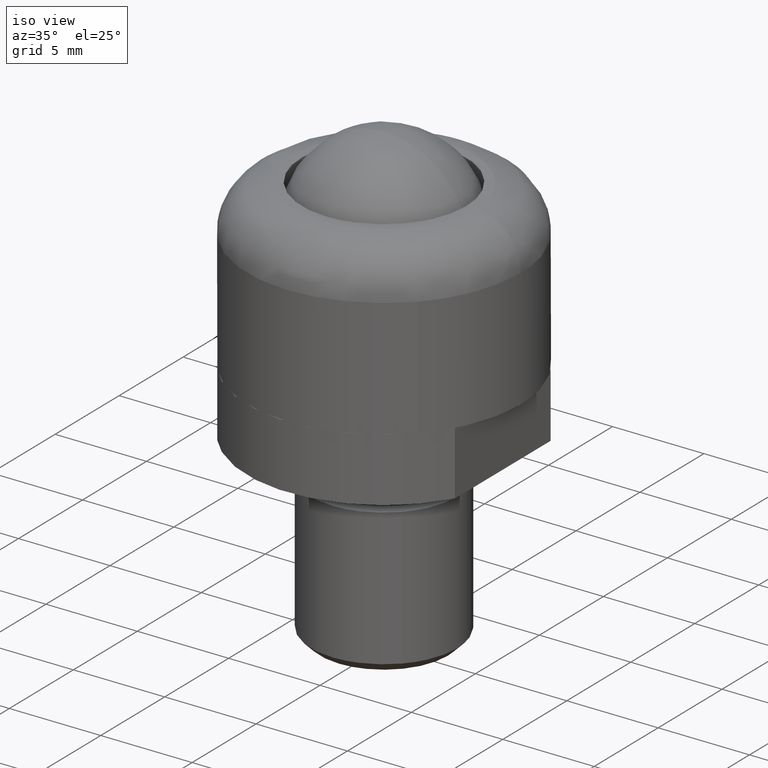
[diagram: clean part render]
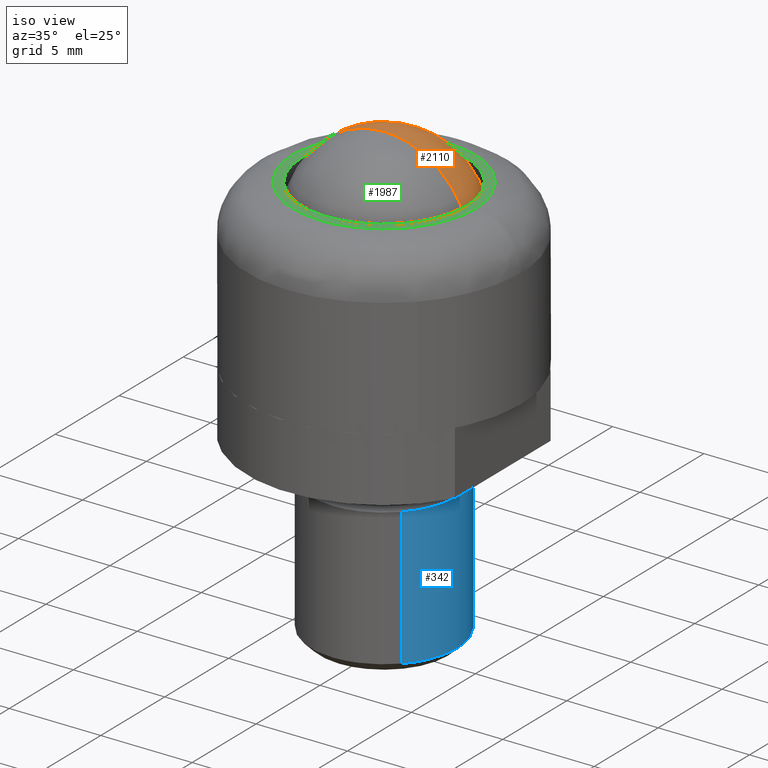
[diagram: same view with three faces highlighted in distinct colors, each labeled with its STEP entity id]
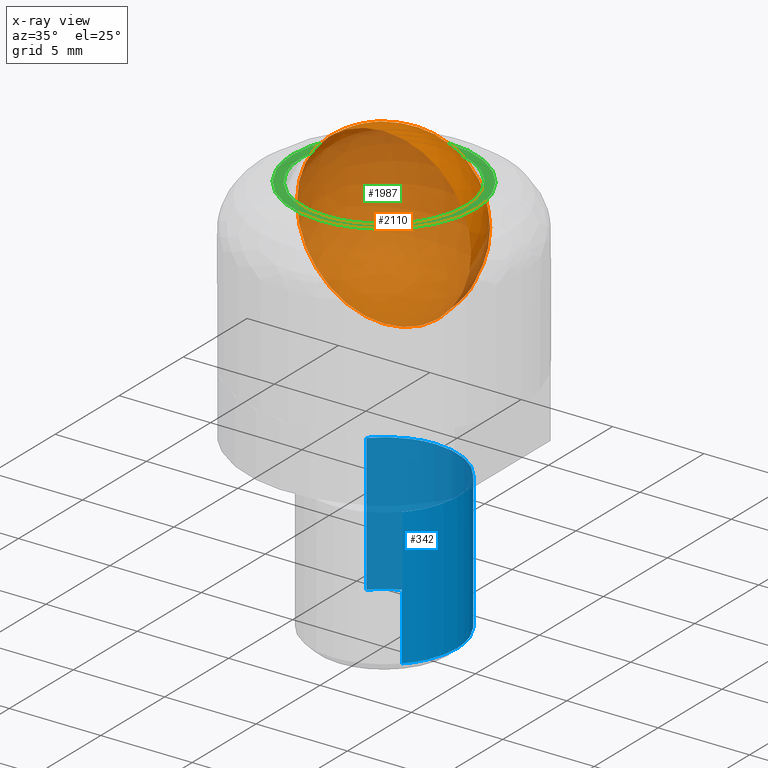
[diagram: x-ray of the same camera — body ghosted, the three highlighted faces saturated]
A machine part, iso view with three faces highlighted in distinct colors.
The next image is the same camera in x-ray (body ghosted, the three faces saturated) — at least one of them is partly hidden behind the body in this view.
Their STEP definitions:

[orange] entity #2110 — the highlighted face is a freeform B-spline surface patch.
#1990=CARTESIAN_POINT('',(-3.121845087131466,-1.785937500000000,9.859345087131466));
#1991=CARTESIAN_POINT('',(-2.827331399666234,-1.168160377358491,10.507275199554982));
#1992=CARTESIAN_POINT('',(-1.189274318907225,-0.226785714285715,11.494597275628903));
#1993=CARTESIAN_POINT('',(1.189274318907225,-0.226785714285715,11.494597275628903));
#1994=CARTESIAN_POINT('',(2.827331399666234,-1.168160377358491,10.507275199554982));
#1995=CARTESIAN_POINT('',(3.121845087131466,-1.785937500000000,9.859345087131466));
#1996=CARTESIAN_POINT('',(-3.769775199554978,-1.168160377358491,9.564831399666234));
#1997=CARTESIAN_POINT('',(-3.567822956721675,-0.226785714285715,10.305322956721676));
#1998=CARTESIAN_POINT('',(-1.611274883680757,1.382661290322580,11.571324651042270));
#1999=CARTESIAN_POINT('',(1.611274883680757,1.382661290322580,11.571324651042270));
#2000=CARTESIAN_POINT('',(3.567822956721675,-0.226785714285715,10.305322956721676));
#2001=CARTESIAN_POINT('',(3.769775199554978,-1.168160377358491,9.564831399666234));
#2002=CARTESIAN_POINT('',(-4.757097275628900,-0.226785714285715,7.926774318907228));
#2003=CARTESIAN_POINT('',(-4.833824651042270,1.382661290322580,8.348774883680756));
#2004=CARTESIAN_POINT('',(-2.497476069705173,4.762499999999998,9.234976069705173));
#2005=CARTESIAN_POINT('',(2.497476069705173,4.762499999999998,9.234976069705173));
#2006=CARTESIAN_POINT('',(4.833824651042270,1.382661290322580,8.348774883680756));
#2007=CARTESIAN_POINT('',(4.757097275628900,-0.226785714285715,7.926774318907228));
#2008=CARTESIAN_POINT('',(-4.757097275628900,-0.226785714285715,5.548225681092776));
#2009=CARTESIAN_POINT('',(-4.833824651042270,1.382661290322580,5.126225116319244));
#2010=CARTESIAN_POINT('',(-2.497476069705173,4.762499999999998,4.240023930294828));
#2011=CARTESIAN_POINT('',(2.497476069705173,4.762499999999998,4.240023930294828));
#2012=CARTESIAN_POINT('',(4.833824651042270,1.382661290322580,5.126225116319244));
#2013=CARTESIAN_POINT('',(4.757097275628900,-0.226785714285715,5.548225681092776));
#2014=CARTESIAN_POINT('',(-3.769775199554978,-1.168160377358491,3.910168600333770));
#2015=CARTESIAN_POINT('',(-3.567822956721675,-0.226785714285715,3.169677043278325));
#2016=CARTESIAN_POINT('',(-1.611274883680757,1.382661290322580,1.903675348957731));
#2017=CARTESIAN_POINT('',(1.611274883680757,1.382661290322580,1.903675348957731));
#2018=CARTESIAN_POINT('',(3.567822956721675,-0.226785714285715,3.169677043278325));
#2019=CARTESIAN_POINT('',(3.769775199554978,-1.168160377358491,3.910168600333770));
#2020=CARTESIAN_POINT('',(-3.121845087131466,-1.785937500000000,3.615654912868534));
#2021=CARTESIAN_POINT('',(-2.827331399666234,-1.168160377358491,2.967724800445025));
#2022=CARTESIAN_POINT('',(-1.189274318907225,-0.226785714285715,1.980402724371100));
#2023=CARTESIAN_POINT('',(1.189274318907225,-0.226785714285715,1.980402724371100));
#2024=CARTESIAN_POINT('',(2.827331399666234,-1.168160377358491,2.967724800445025));
#2025=CARTESIAN_POINT('',(3.121845087131466,-1.785937500000000,3.615654912868534));
#2033=(BOUNDED_SURFACE()B_SPLINE_SURFACE(2,2,((#1990,#1996,#2002,#2008,#2014,#2020),(#1991,#1997,#2003,#2009,#2015,#2021),(#1992,#1998,#2004,#2010,#2016,#2022),(#1993,#1999,#2005,#2011,#2017,#2023),(#1994,#2000,#2006,#2012,#2018,#2024),(#1995,#2001,#2007,#2013,#2019,#2025)),.UNSPECIFIED.,.F.,.F.,.U.)B_SPLINE_SURFACE_WITH_KNOTS((3,1,1,1,3),(3,1,1,1,3),(0.0,4.391166715965140,8.782333431930280,13.173500147895419,17.564666863860559),(0.0,4.391166715965142,8.782333431930285,13.173500147895430,17.564666863860570),.UNSPECIFIED.)GEOMETRIC_REPRESENTATION_ITEM()RATIONAL_B_SPLINE_SURFACE(((3.200000000000000,2.650000000000000,2.100000000000000,2.100000000000000,2.650000000000000,3.200000000000000),(2.650000000000000,2.100000000000000,1.550000000000000,1.550000000000000,2.100000000000000,2.650000000000000),(2.100000000000000,1.550000000000000,1.0,1.0,1.550000000000000,2.100000000000000),(2.100000000000000,1.550000000000000,1.0,1.0,1.550000000000000,2.100000000000000),(2.650000000000000,2.100000000000000,1.550000000000000,1.550000000000000,2.100000000000000,2.650000000000000),(3.200000000000000,2.650000000000000,2.100000000000000,2.100000000000000,2.650000000000000,3.200000000000000)))REPRESENTATION_ITEM('')SURFACE());
#2034=CARTESIAN_POINT('',(4.762499999999982,0.0,6.737499585445666));
#2035=VERTEX_POINT('',#2034);
#2036=CARTESIAN_POINT('',(0.0,0.0,1.975000000000000));
#2037=VERTEX_POINT('',#2036);
#2038=CARTESIAN_POINT('',(4.762499999999982,0.0,6.737499585445666));
#2039=CARTESIAN_POINT('',(4.762514732332685,0.0,6.493981969425077));
#2040=CARTESIAN_POINT('',(4.725814310999592,0.0,6.016687996244976));
#2041=CARTESIAN_POINT('',(4.574124597411461,0.0,5.360043846073175));
#2042=CARTESIAN_POINT('',(4.349456858527381,0.0,4.766813615024045));
#2043=CARTESIAN_POINT('',(4.052094133969249,0.0,4.206341764249821));
#2044=CARTESIAN_POINT('',(3.703072825973951,0.0,3.723479116841512));
#2045=CARTESIAN_POINT('',(3.298180514088192,0.0,3.287624090510573));
#2046=CARTESIAN_POINT('',(2.898009852003741,0.0,2.944568869238067));
#2047=CARTESIAN_POINT('',(2.412395517687481,0.0,2.617933880416886));
#2048=CARTESIAN_POINT('',(1.829940402747807,0.0,2.320233805034202));
#2049=CARTESIAN_POINT('',(1.013009215858139,0.0,2.050344632642077));
#2050=CARTESIAN_POINT('',(0.370155750416168,0.0,1.974917072236426));
#2051=CARTESIAN_POINT('',(0.0,0.0,1.975000000000000));
#2052=B_SPLINE_CURVE_WITH_KNOTS('',3,(#2038,#2039,#2040,#2041,#2042,#2043,#2044,#2045,#2046,#2047,#2048,#2049,#2050,#2051),.UNSPECIFIED.,.F.,.U.,(4,1,1,1,1,1,1,1,1,1,1,4),(0.000000019654474,0.730551790342653,1.431894938645042,2.016345177654079,2.630018328089525,3.331359486902169,3.798901866662922,4.412570732506522,4.909355597674183,5.552251747885189,6.370481118446810,7.480929008099495),.UNSPECIFIED.);
#2053=EDGE_CURVE('',#2035,#2037,#2052,.T.);
#2054=ORIENTED_EDGE('',*,*,#2053,.T.);
#2055=CARTESIAN_POINT('',(-4.762499999999982,0.0,6.737499585445666));
#2056=VERTEX_POINT('',#2055);
#2057=CARTESIAN_POINT('',(-4.762499999999982,0.0,6.737499585445666));
#2058=CARTESIAN_POINT('',(-4.762514732332685,0.0,6.493981969425077));
#2059=CARTESIAN_POINT('',(-4.725814310999592,0.0,6.016687996244976));
#2060=CARTESIAN_POINT('',(-4.574124597411461,0.0,5.360043846073175));
#2061=CARTESIAN_POINT('',(-4.349456858527381,0.0,4.766813615024045));
#2062=CARTESIAN_POINT('',(-4.052094133969249,0.0,4.206341764249821));
#2063=CARTESIAN_POINT('',(-3.703072825973951,0.0,3.723479116841512));
#2064=CARTESIAN_POINT('',(-3.298180514088192,0.0,3.287624090510573));
#2065=CARTESIAN_POINT('',(-2.898009852003741,0.0,2.944568869238067));
#2066=CARTESIAN_POINT('',(-2.412395517687481,0.0,2.617933880416886));
#2067=CARTESIAN_POINT('',(-1.829940402747807,0.0,2.320233805034202));
#2068=CARTESIAN_POINT('',(-1.013009215858139,0.0,2.050344632642077));
#2069=CARTESIAN_POINT('',(-0.370155750416168,0.0,1.974917072236426));
#2070=CARTESIAN_POINT('',(0.0,0.0,1.975000000000000));
#2071=B_SPLINE_CURVE_WITH_KNOTS('',3,(#2057,#2058,#2059,#2060,#2061,#2062,#2063,#2064,#2065,#2066,#2067,#2068,#2069,#2070),.UNSPECIFIED.,.F.,.U.,(4,1,1,1,1,1,1,1,1,1,1,4),(0.000000019654474,0.730551790342653,1.431894938645042,2.016345177654079,2.630018328089525,3.331359486902169,3.798901866662922,4.412570732506522,4.909355597674183,5.552251747885189,6.370481118446810,7.480929008099495),.UNSPECIFIED.);
#2072=EDGE_CURVE('',#2056,#2037,#2071,.T.);
#2073=ORIENTED_EDGE('',*,*,#2072,.F.);
#2074=CARTESIAN_POINT('',(0.0,0.0,11.500000000000000));
#2075=VERTEX_POINT('',#2074);
#2076=CARTESIAN_POINT('',(0.0,0.0,11.500000000000000));
#2077=CARTESIAN_POINT('',(-0.340931149461797,0.0,11.500055971802750));
#2078=CARTESIAN_POINT('',(-0.915612100753172,0.0,11.438015420876470));
#2079=CARTESIAN_POINT('',(-1.645990165019853,0.0,11.221323934526101));
#2080=CARTESIAN_POINT('',(-2.260651995120762,0.0,10.946605036447981));
#2081=CARTESIAN_POINT('',(-2.791064391443057,0.0,10.615276539943720));
#2082=CARTESIAN_POINT('',(-3.337484662332443,0.0,10.158353219283370));
#2083=CARTESIAN_POINT('',(-3.846152066028528,0.0,9.590203875961683));
#2084=CARTESIAN_POINT('',(-4.259843387155067,0.0,8.914159520313602));
#2085=CARTESIAN_POINT('',(-4.561668172774212,0.0,8.172656290503381));
#2086=CARTESIAN_POINT('',(-4.726709104256833,0.0,7.468055751685463));
#2087=CARTESIAN_POINT('',(-4.762507216062855,0.0,6.961534513264486));
#2088=CARTESIAN_POINT('',(-4.762499999999982,0.0,6.737499585445666));
#2089=B_SPLINE_CURVE_WITH_KNOTS('',3,(#2076,#2077,#2078,#2079,#2080,#2081,#2082,#2083,#2084,#2085,#2086,#2087,#2088),.UNSPECIFIED.,.F.,.U.,(4,1,1,1,1,1,1,1,1,1,4),(0.000000019616457,1.022781354435088,1.724120218051358,2.279347462089524,3.039131588883236,3.594354046877478,4.412571008192345,5.318471570709793,5.961366957483507,6.808823214131451,7.480929475399615),.UNSPECIFIED.);
#2090=EDGE_CURVE('',#2075,#2056,#2089,.T.);
#2091=ORIENTED_EDGE('',*,*,#2090,.F.);
#2092=CARTESIAN_POINT('',(0.0,0.0,11.500000000000000));
#2093=CARTESIAN_POINT('',(0.340931149461797,0.0,11.500055971802750));
#2094=CARTESIAN_POINT('',(0.915612100753172,0.0,11.438015420876470));
#2095=CARTESIAN_POINT('',(1.645990165019853,0.0,11.221323934526101));
#2096=CARTESIAN_POINT('',(2.260651995120762,0.0,10.946605036447981));
#2097=CARTESIAN_POINT('',(2.791064391443057,0.0,10.615276539943720));
#2098=CARTESIAN_POINT('',(3.337484662332443,0.0,10.158353219283370));
#2099=CARTESIAN_POINT('',(3.846152066028528,0.0,9.590203875961683));
#2100=CARTESIAN_POINT('',(4.259843387155067,0.0,8.914159520313602));
#2101=CARTESIAN_POINT('',(4.561668172774212,0.0,8.172656290503381));
#2102=CARTESIAN_POINT('',(4.726709104256833,0.0,7.468055751685463));
#2103=CARTESIAN_POINT('',(4.762507216062855,0.0,6.961534513264486));
#2104=CARTESIAN_POINT('',(4.762499999999982,0.0,6.737499585445666));
#2105=B_SPLINE_CURVE_WITH_KNOTS('',3,(#2092,#2093,#2094,#2095,#2096,#2097,#2098,#2099,#2100,#2101,#2102,#2103,#2104),.UNSPECIFIED.,.F.,.U.,(4,1,1,1,1,1,1,1,1,1,4),(0.000000019616457,1.022781354435088,1.724120218051358,2.279347462089524,3.039131588883236,3.594354046877478,4.412571008192345,5.318471570709793,5.961366957483507,6.808823214131451,7.480929475399615),.UNSPECIFIED.);
#2106=EDGE_CURVE('',#2075,#2035,#2105,.T.);
#2107=ORIENTED_EDGE('',*,*,#2106,.T.);
#2108=EDGE_LOOP('',(#2054,#2073,#2091,#2107));
#2109=FACE_OUTER_BOUND('',#2108,.T.);
#2110=ADVANCED_FACE('',(#2109),#2033,.T.);

[blue] entity #342 — the highlighted face is a freeform B-spline surface patch.
#140=CARTESIAN_POINT('',(2.702360905895586,2.949109429561174,-12.999999962781549));
#141=VERTEX_POINT('',#140);
#147=CARTESIAN_POINT('',(4.0,0.0,-12.999999999999860));
#148=VERTEX_POINT('',#147);
#149=CARTESIAN_POINT('',(2.702360905895586,2.949109429561174,-12.999999962781549));
#150=CARTESIAN_POINT('',(2.887023993022948,2.779937766610589,-12.999999964916530));
#151=CARTESIAN_POINT('',(3.172035105336778,2.464644462735711,-12.999999968895580));
#152=CARTESIAN_POINT('',(3.464462412668522,2.014798165396831,-12.999999974572731));
#153=CARTESIAN_POINT('',(3.718721530333733,1.513799014013364,-12.999999980895460));
#154=CARTESIAN_POINT('',(3.936967702406595,0.863557567052297,-12.999999989101489));
#155=CARTESIAN_POINT('',(4.000049423881165,0.293619034072345,-12.999999996294390));
#156=CARTESIAN_POINT('',(4.0,0.0,-12.999999999999860));
#157=B_SPLINE_CURVE_WITH_KNOTS('',3,(#149,#150,#151,#152,#153,#154,#155,#156),.UNSPECIFIED.,.F.,.U.,(4,1,1,1,1,4),(5.929453E-009,0.751310531476355,1.269460208842413,1.606254067652039,2.435283786637226,3.316131421160547),.UNSPECIFIED.);
#158=EDGE_CURVE('',#141,#148,#157,.T.);
#160=CARTESIAN_POINT('',(2.901497424377466,-2.753418257254559,-12.999999999999860));
#161=VERTEX_POINT('',#160);
#162=CARTESIAN_POINT('',(4.0,0.0,-12.999999999999860));
#163=CARTESIAN_POINT('',(4.000021593978187,-0.229348625047346,-12.999999999999860));
#164=CARTESIAN_POINT('',(3.965891133637014,-0.624767858892875,-12.999999999999879));
#165=CARTESIAN_POINT('',(3.833445170229573,-1.179699498566134,-12.999999999999860));
#166=CARTESIAN_POINT('',(3.637077466204650,-1.698561861951282,-12.999999999999879));
#167=CARTESIAN_POINT('',(3.336519293514331,-2.239516411124261,-12.999999999999879));
#168=CARTESIAN_POINT('',(3.059384414003708,-2.587068221887849,-12.999999999999851));
#169=CARTESIAN_POINT('',(2.901497424377466,-2.753418257254559,-12.999999999999860));
#170=B_SPLINE_CURVE_WITH_KNOTS('',3,(#162,#163,#164,#165,#166,#167,#168,#169),.UNSPECIFIED.,.F.,.U.,(4,1,1,1,1,4),(4.603046E-009,0.688042406418738,1.186282735303504,1.708241255789303,2.348834928055208,3.036877329870923),.UNSPECIFIED.);
#171=EDGE_CURVE('',#148,#161,#170,.T.);
#218=CARTESIAN_POINT('',(-2.901497424377443,2.753418257254539,-12.999999999999860));
#219=VERTEX_POINT('',#218);
#231=CARTESIAN_POINT('',(0.000000298883830,3.999999999999989,-12.999999999999860));
#232=VERTEX_POINT('',#231);
#233=CARTESIAN_POINT('',(-2.901497424377443,2.753418257254539,-12.999999999999860));
#234=CARTESIAN_POINT('',(-2.750206587640404,2.912868527830649,-12.999999999999851));
#235=CARTESIAN_POINT('',(-2.427571364465209,3.201078697174429,-12.999999999999901));
#236=CARTESIAN_POINT('',(-1.977038722932054,3.488251565986723,-12.999999999999810));
#237=CARTESIAN_POINT('',(-1.520002022197613,3.709111774006864,-12.999999999999940));
#238=CARTESIAN_POINT('',(-0.904516983966002,3.926331082798158,-12.999999999999750));
#239=CARTESIAN_POINT('',(-0.355080002970088,4.000121724714623,-12.999999999999970));
#240=CARTESIAN_POINT('',(0.000000298883830,3.999999999999989,-12.999999999999860));
#241=B_SPLINE_CURVE_WITH_KNOTS('',3,(#233,#234,#235,#236,#237,#238,#239,#240),.UNSPECIFIED.,.F.,.U.,(4,1,1,1,1,4),(5.673908E-009,0.659407504231194,1.293456705138537,1.597803688364206,2.181119599837517,3.246318106935278),.UNSPECIFIED.);
#242=EDGE_CURVE('',#219,#232,#241,.T.);
#244=CARTESIAN_POINT('',(0.000000298883830,3.999999999999989,-12.999999999999860));
#245=CARTESIAN_POINT('',(0.200895245041406,4.000009741065902,-12.999999997233040));
#246=CARTESIAN_POINT('',(0.618135346055895,3.968503406404327,-12.999999991486581));
#247=CARTESIAN_POINT('',(1.266997148080641,3.815367410500787,-12.999999982550140));
#248=CARTESIAN_POINT('',(1.994290166279026,3.503029766517091,-12.999999972533431));
#249=CARTESIAN_POINT('',(2.463142836505641,3.168411580844910,-12.999999966076210));
#250=CARTESIAN_POINT('',(2.702360905895586,2.949109429561174,-12.999999962781549));
#251=B_SPLINE_CURVE_WITH_KNOTS('',3,(#244,#245,#246,#247,#248,#249,#250),.UNSPECIFIED.,.F.,.U.,(4,1,1,1,4),(1.254538E-009,0.602687290401516,1.251735501374134,1.993504139517309,2.967076076935547),.UNSPECIFIED.);
#252=EDGE_CURVE('',#232,#141,#251,.T.);
#262=CARTESIAN_POINT('',(-2.901497484049150,2.753418302775015,-5.312499999999901));
#263=CARTESIAN_POINT('',(-0.148079181274134,5.654915786824165,-5.312499999999901));
#264=CARTESIAN_POINT('',(2.753418302775015,2.901497484049150,-5.312499999999901));
#265=CARTESIAN_POINT('',(5.654915786824165,0.148079181274134,-5.312499999999901));
#266=CARTESIAN_POINT('',(2.901497484049150,-2.753418302775015,-5.312499999999901));
#267=CARTESIAN_POINT('',(-2.901497484049150,2.753418302775015,-13.192187499999861));
#268=CARTESIAN_POINT('',(-0.148079181274134,5.654915786824165,-13.192187499999861));
#269=CARTESIAN_POINT('',(2.753418302775015,2.901497484049150,-13.192187499999861));
#270=CARTESIAN_POINT('',(5.654915786824165,0.148079181274134,-13.192187499999861));
#271=CARTESIAN_POINT('',(2.901497484049150,-2.753418302775015,-13.192187499999861));
#279=(BOUNDED_SURFACE()B_SPLINE_SURFACE(2,1,((#262,#267),(#263,#268),(#264,#269),(#265,#270),(#266,#271)),.UNSPECIFIED.,.F.,.F.,.U.)B_SPLINE_SURFACE_WITH_KNOTS((3,2,3),(2,2),(0.0,6.627416997969519,13.254833995939039),(0.0,7.879687499999960),.UNSPECIFIED.)GEOMETRIC_REPRESENTATION_ITEM()RATIONAL_B_SPLINE_SURFACE(((1.0,1.0),(0.707106781186548,0.707106781186548),(1.0,1.0),(0.707106781186548,0.707106781186548),(1.0,1.0)))REPRESENTATION_ITEM('')SURFACE());
#280=CARTESIAN_POINT('',(-2.901497424312712,2.753418257322751,-5.499999999999949));
#281=VERTEX_POINT('',#280);
#282=CARTESIAN_POINT('',(0.000000298883830,3.999999999999989,-5.499999999999900));
#283=VERTEX_POINT('',#282);
#284=CARTESIAN_POINT('',(-2.901497424312712,2.753418257322751,-5.499999999999949));
#285=CARTESIAN_POINT('',(-2.692042282817991,2.974227429440102,-5.499999999999928));
#286=CARTESIAN_POINT('',(-2.326746761366625,3.280190441546983,-5.499999999999956));
#287=CARTESIAN_POINT('',(-1.760660893968436,3.604226249855561,-5.499999999999912));
#288=CARTESIAN_POINT('',(-1.337481163793046,3.778139443193969,-5.499999999999925));
#289=CARTESIAN_POINT('',(-0.752372578608980,3.947775834812802,-5.499999999999932));
#290=CARTESIAN_POINT('',(-0.321259808806420,4.000084514765439,-5.499999999999891));
#291=CARTESIAN_POINT('',(0.000000298883830,3.999999999999989,-5.499999999999900));
#292=B_SPLINE_CURVE_WITH_KNOTS('',3,(#284,#285,#286,#287,#288,#289,#290,#291),.UNSPECIFIED.,.F.,.U.,(4,1,1,1,1,4),(5.674907E-009,0.913027680958912,1.420269032715031,1.952861407411021,2.282566554795959,3.246318106841233),.UNSPECIFIED.);
#293=EDGE_CURVE('',#281,#283,#292,.T.);
#294=ORIENTED_EDGE('',*,*,#293,.T.);
#295=CARTESIAN_POINT('',(4.0,0.0,-5.499999999999900));
#296=VERTEX_POINT('',#295);
#297=CARTESIAN_POINT('',(0.000000298883830,3.999999999999989,-5.499999999999900));
#298=CARTESIAN_POINT('',(0.253617496304542,4.000025669690686,-5.499999999999906));
#299=CARTESIAN_POINT('',(0.769029144851039,3.950829381209890,-5.499999999999909));
#300=CARTESIAN_POINT('',(1.454695166348925,3.747425338526501,-5.499999999999876));
#301=CARTESIAN_POINT('',(2.108856487774177,3.423155772556104,-5.499999999999949));
#302=CARTESIAN_POINT('',(2.592111828788181,3.067061335882910,-5.499999999999893));
#303=CARTESIAN_POINT('',(3.014906574129836,2.644219374237199,-5.499999999999863));
#304=CARTESIAN_POINT('',(3.322778849330700,2.249734494038107,-5.499999999999972));
#305=CARTESIAN_POINT('',(3.581469842584006,1.802697412224366,-5.499999999999937));
#306=CARTESIAN_POINT('',(3.810712041791886,1.268004520565301,-5.499999999999877));
#307=CARTESIAN_POINT('',(3.964178759081424,0.670861461263990,-5.499999999999963));
#308=CARTESIAN_POINT('',(4.000007101305900,0.204527303122591,-5.499999999999854));
#309=CARTESIAN_POINT('',(4.0,0.0,-5.499999999999900));
#310=B_SPLINE_CURVE_WITH_KNOTS('',3,(#297,#298,#299,#300,#301,#302,#303,#304,#305,#306,#307,#308,#309),.UNSPECIFIED.,.F.,.U.,(4,1,1,1,1,1,1,1,1,1,4),(0.000000020019295,0.760849594886410,1.546255071134481,2.135306115319639,2.945258018465191,3.337937279705436,3.926993200300530,4.442413600494239,4.884203644449523,5.669609726160413,6.283194995218321),.UNSPECIFIED.);
#311=EDGE_CURVE('',#283,#296,#310,.T.);
#312=ORIENTED_EDGE('',*,*,#311,.T.);
#313=CARTESIAN_POINT('',(2.901497424312734,-2.753418257322772,-5.499999999999950));
#314=VERTEX_POINT('',#313);
#315=CARTESIAN_POINT('',(4.0,0.0,-5.499999999999900));
#316=CARTESIAN_POINT('',(4.000018653169173,-0.229348230995818,-5.499999999999897));
#317=CARTESIAN_POINT('',(3.965893368911039,-0.624767903599020,-5.499999999999924));
#318=CARTESIAN_POINT('',(3.822417240363636,-1.225948493815593,-5.499999999999912));
#319=CARTESIAN_POINT('',(3.622448467478989,-1.727163017602790,-5.499999999999942));
#320=CARTESIAN_POINT('',(3.315988669462681,-2.263649648905021,-5.499999999999909));
#321=CARTESIAN_POINT('',(3.070276408767186,-2.575597890310852,-5.499999999999973));
#322=CARTESIAN_POINT('',(2.901497424312734,-2.753418257322772,-5.499999999999950));
#323=B_SPLINE_CURVE_WITH_KNOTS('',3,(#315,#316,#317,#318,#319,#320,#321,#322),.UNSPECIFIED.,.F.,.U.,(4,1,1,1,1,4),(4.603082E-009,0.688042406440105,1.186282735340304,1.850594599230796,2.301383621379532,3.036877329964961),.UNSPECIFIED.);
#324=EDGE_CURVE('',#296,#314,#323,.T.);
#325=ORIENTED_EDGE('',*,*,#324,.T.);
#326=CARTESIAN_POINT('',(2.901497424312734,-2.753418257322772,-5.499999999999950));
#327=CARTESIAN_POINT('',(2.901497424377466,-2.753418257254559,-12.999999999999860));
#328=QUASI_UNIFORM_CURVE('',1,(#326,#327),.UNSPECIFIED.,.F.,.U.);
#329=EDGE_CURVE('',#314,#161,#328,.T.);
#330=ORIENTED_EDGE('',*,*,#329,.T.);
#331=ORIENTED_EDGE('',*,*,#171,.F.);
#332=ORIENTED_EDGE('',*,*,#158,.F.);
#333=ORIENTED_EDGE('',*,*,#252,.F.);
#334=ORIENTED_EDGE('',*,*,#242,.F.);
#335=CARTESIAN_POINT('',(-2.901497424312712,2.753418257322751,-5.499999999999949));
#336=CARTESIAN_POINT('',(-2.901497424377443,2.753418257254539,-12.999999999999860));
#337=QUASI_UNIFORM_CURVE('',1,(#335,#336),.UNSPECIFIED.,.F.,.U.);
#338=EDGE_CURVE('',#281,#219,#337,.T.);
#339=ORIENTED_EDGE('',*,*,#338,.F.);
#340=EDGE_LOOP('',(#294,#312,#325,#330,#331,#332,#333,#334,#339));
#341=FACE_OUTER_BOUND('',#340,.T.);
#342=ADVANCED_FACE('',(#341),#279,.T.);

[green] entity #1987 — the highlighted face is a freeform B-spline surface patch.
#1519=CARTESIAN_POINT('',(3.263378557475537,-3.096830598843805,9.0));
#1520=VERTEX_POINT('',#1519);
#1526=CARTESIAN_POINT('',(4.498888751680795,0.0,9.0));
#1527=VERTEX_POINT('',#1526);
#1528=CARTESIAN_POINT('',(4.498888751680795,0.0,9.0));
#1529=CARTESIAN_POINT('',(4.498935460677604,-0.320220603456448,8.999999999999998));
#1530=CARTESIAN_POINT('',(4.445474646121634,-0.818310686023391,9.000000000000012));
#1531=CARTESIAN_POINT('',(4.229383001085413,-1.590608739054498,9.000000000000014));
#1532=CARTESIAN_POINT('',(3.884267433894095,-2.337191975704489,8.999999999999956));
#1533=CARTESIAN_POINT('',(3.496101165779491,-2.851693243615013,9.000000000000036));
#1534=CARTESIAN_POINT('',(3.263378557475537,-3.096830598843805,9.0));
#1535=B_SPLINE_CURVE_WITH_KNOTS('',3,(#1528,#1529,#1530,#1531,#1532,#1533,#1534),.UNSPECIFIED.,.F.,.U.,(4,1,1,1,4),(4.579866E-009,0.960650353553590,1.494348417905665,2.401623401945296,3.415643296512392),.UNSPECIFIED.);
#1536=EDGE_CURVE('',#1527,#1520,#1535,.T.);
#1538=CARTESIAN_POINT('',(0.000000281643695,4.498888751680786,9.0));
#1539=VERTEX_POINT('',#1538);
#1540=CARTESIAN_POINT('',(0.000000281643695,4.498888751680786,9.0));
#1541=CARTESIAN_POINT('',(0.331262336279236,4.498945270749258,9.000000000000002));
#1542=CARTESIAN_POINT('',(0.966148250582645,4.428445347769349,8.999999999999977));
#1543=CARTESIAN_POINT('',(1.782054620175012,4.156149013396295,9.000000000000037));
#1544=CARTESIAN_POINT('',(2.382196650118315,3.830554111193169,8.999999999999957));
#1545=CARTESIAN_POINT('',(2.838729470177412,3.502700902375347,9.000000000000076));
#1546=CARTESIAN_POINT('',(3.262246058372905,3.118865737678777,8.999999999999741));
#1547=CARTESIAN_POINT('',(3.652963870242032,2.651606884594702,9.000000000000094));
#1548=CARTESIAN_POINT('',(4.012696893274621,2.071797442346149,8.999999999999966));
#1549=CARTESIAN_POINT('',(4.296544077376456,1.409694884580769,9.000000000000025));
#1550=CARTESIAN_POINT('',(4.465076945890923,0.690118127753596,8.999999999999988));
#1551=CARTESIAN_POINT('',(4.498895768092663,0.211636100287874,9.000000000000005));
#1552=CARTESIAN_POINT('',(4.498888751680795,0.0,9.0));
#1553=B_SPLINE_CURVE_WITH_KNOTS('',3,(#1540,#1541,#1542,#1543,#1544,#1545,#1546,#1547,#1548,#1549,#1550,#1551,#1552),.UNSPECIFIED.,.F.,.U.,(4,1,1,1,1,1,1,1,1,1,4),(0.000000019808202,0.993774106784388,1.904737751068453,2.567254202280022,3.036545176461555,3.588627845486824,4.278749003096163,4.858457275012015,5.631397431601816,6.431940094218685,7.066848852878020),.UNSPECIFIED.);
#1554=EDGE_CURVE('',#1539,#1527,#1553,.T.);
#1556=CARTESIAN_POINT('',(-3.263378557475537,3.096830598843805,9.0));
#1557=VERTEX_POINT('',#1556);
#1558=CARTESIAN_POINT('',(-3.263378557475537,3.096830598843805,9.0));
#1559=CARTESIAN_POINT('',(-3.027803016656733,3.345184453949136,8.999999999999982));
#1560=CARTESIAN_POINT('',(-2.675637652944154,3.640138791487309,8.999999999999979));
#1561=CARTESIAN_POINT('',(-2.098015540390800,3.990517275772856,9.000000000000002));
#1562=CARTESIAN_POINT('',(-1.518581774449633,4.259346320877321,9.000000000000004));
#1563=CARTESIAN_POINT('',(-0.779687392186584,4.455869195582601,9.000000000000002));
#1564=CARTESIAN_POINT('',(-0.237706447497420,4.498895296450338,9.000000000000007));
#1565=CARTESIAN_POINT('',(0.000000281643695,4.498888751680786,9.0));
#1566=B_SPLINE_CURVE_WITH_KNOTS('',3,(#1558,#1559,#1560,#1561,#1562,#1563,#1564,#1565),.UNSPECIFIED.,.F.,.U.,(4,1,1,1,1,4),(5.635851E-009,1.026902184340313,1.369204948702386,2.025277013611290,2.938081313421259,3.651205978474409),.UNSPECIFIED.);
#1567=EDGE_CURVE('',#1557,#1539,#1566,.T.);
#1597=CARTESIAN_POINT('',(-4.498888751680795,0.0,9.0));
#1598=VERTEX_POINT('',#1597);
#1599=CARTESIAN_POINT('',(-4.498888751680795,0.0,9.0));
#1600=CARTESIAN_POINT('',(-4.498961887772488,0.338013898801075,8.999999999999968));
#1601=CARTESIAN_POINT('',(-4.438440496873623,0.871673584697317,9.000000000000087));
#1602=CARTESIAN_POINT('',(-4.231521354561919,1.563412135520404,8.999999999999902));
#1603=CARTESIAN_POINT('',(-3.978194527595485,2.133514708820720,9.000000000000103));
#1604=CARTESIAN_POINT('',(-3.655611177146444,2.647455450764606,9.000000000000007));
#1605=CARTESIAN_POINT('',(-3.385835839977255,2.967789333353322,8.999999999999977));
#1606=CARTESIAN_POINT('',(-3.263378557475537,3.096830598843805,9.0));
#1607=B_SPLINE_CURVE_WITH_KNOTS('',3,(#1599,#1600,#1601,#1602,#1603,#1604,#1605,#1606),.UNSPECIFIED.,.F.,.U.,(4,1,1,1,1,4),(4.579985E-009,1.014019935476088,1.601086251843831,2.161459252632333,2.881949470325617,3.415643296512392),.UNSPECIFIED.);
#1608=EDGE_CURVE('',#1598,#1557,#1607,.T.);
#1610=CARTESIAN_POINT('',(-0.000000281643695,-4.498888751680786,9.0));
#1611=VERTEX_POINT('',#1610);
#1612=CARTESIAN_POINT('',(-0.000000281643695,-4.498888751680786,9.0));
#1613=CARTESIAN_POINT('',(-0.331261436653752,-4.498946283964020,8.999999999999981));
#1614=CARTESIAN_POINT('',(-0.984558024116498,-4.426417659799504,9.000000000000055));
#1615=CARTESIAN_POINT('',(-1.843089873315131,-4.134009926427192,8.999999999999954));
#1616=CARTESIAN_POINT('',(-2.612984959522558,-3.694729804936839,9.000000000000069));
#1617=CARTESIAN_POINT('',(-3.204556311565883,-3.190758052789116,8.999999999999957));
#1618=CARTESIAN_POINT('',(-3.662679416166237,-2.635930111043005,9.000000000000005));
#1619=CARTESIAN_POINT('',(-4.002972513709909,-2.087466562229322,9.000000000000009));
#1620=CARTESIAN_POINT('',(-4.242751421282504,-1.537448993652727,9.000000000000004));
#1621=CARTESIAN_POINT('',(-4.443744385227652,-0.828116715130430,8.999999999999998));
#1622=CARTESIAN_POINT('',(-4.498954807411312,-0.331263809076668,9.000000000000007));
#1623=CARTESIAN_POINT('',(-4.498888751680795,0.0,9.0));
#1624=B_SPLINE_CURVE_WITH_KNOTS('',3,(#1612,#1613,#1614,#1615,#1616,#1617,#1618,#1619,#1620,#1621,#1622,#1623),.UNSPECIFIED.,.F.,.U.,(4,1,1,1,1,1,1,1,1,4),(0.000000019810025,0.993774106785876,1.959947733478866,2.705281991610567,3.643833865035968,4.278749003096404,4.858457275012053,5.576187526783677,6.073078951896562,7.066848852878023),.UNSPECIFIED.);
#1625=EDGE_CURVE('',#1611,#1598,#1624,.T.);
#1627=CARTESIAN_POINT('',(3.263378557475537,-3.096830598843805,9.0));
#1628=CARTESIAN_POINT('',(3.125936173908807,-3.241673960508475,9.000000000000011));
#1629=CARTESIAN_POINT('',(2.824718399277705,-3.519479138638781,9.000000000000004));
#1630=CARTESIAN_POINT('',(2.292988103453792,-3.890079977479928,9.000000000000009));
#1631=CARTESIAN_POINT('',(1.600605116036440,-4.232903609282900,8.999999999999973));
#1632=CARTESIAN_POINT('',(0.817724371304175,-4.451786574322478,9.000000000000156));
#1633=CARTESIAN_POINT('',(0.247214942362046,-4.498898278925623,8.999999999999893));
#1634=CARTESIAN_POINT('',(-0.000000281643695,-4.498888751680786,9.0));
#1635=B_SPLINE_CURVE_WITH_KNOTS('',3,(#1627,#1628,#1629,#1630,#1631,#1632,#1633,#1634),.UNSPECIFIED.,.F.,.U.,(4,1,1,1,1,4),(5.635812E-009,0.599024748011077,1.226578249678056,1.939697969219998,2.909554964137757,3.651205978474408),.UNSPECIFIED.);
#1636=EDGE_CURVE('',#1520,#1611,#1635,.T.);
#1825=CARTESIAN_POINT('',(-5.000000000043314,-5.084947E-016,9.0));
#1826=VERTEX_POINT('',#1825);
#1841=CARTESIAN_POINT('',(0.000000266971305,4.999999999999993,9.0));
#1842=VERTEX_POINT('',#1841);
#1843=CARTESIAN_POINT('',(-5.000000000043314,-5.084947E-016,9.0));
#1844=CARTESIAN_POINT('',(-5.000007890424095,0.224983855463615,8.999999999999991));
#1845=CARTESIAN_POINT('',(-4.968200484025853,0.695402587960306,9.000000000000005));
#1846=CARTESIAN_POINT('',(-4.821664554962340,1.387607833398099,9.0));
#1847=CARTESIAN_POINT('',(-4.545370741286215,2.138025560913845,8.999999999999975));
#1848=CARTESIAN_POINT('',(-4.153367709639184,2.825063642269815,9.000000000000092));
#1849=CARTESIAN_POINT('',(-3.609087681560905,3.492437774499846,8.999999999999831));
#1850=CARTESIAN_POINT('',(-3.055155872228553,3.982246604370579,9.000000000000059));
#1851=CARTESIAN_POINT('',(-2.435665046549815,4.382540348556812,9.000000000000011));
#1852=CARTESIAN_POINT('',(-1.806384525172863,4.682552600585473,8.999999999999986));
#1853=CARTESIAN_POINT('',(-0.981724500014594,4.932713782756722,9.000000000000009));
#1854=CARTESIAN_POINT('',(-0.357933658069401,5.000064999193293,8.999999999999996));
#1855=CARTESIAN_POINT('',(0.000000266971305,4.999999999999993,9.0));
#1856=B_SPLINE_CURVE_WITH_KNOTS('',3,(#1843,#1844,#1845,#1846,#1847,#1848,#1849,#1850,#1851,#1852,#1853,#1854,#1855),.UNSPECIFIED.,.F.,.U.,(4,1,1,1,1,1,1,1,1,1,4),(0.000000019292244,0.674951717166512,1.411264140829999,2.116897929513427,3.067967953989842,3.773601460351227,4.693987596807988,5.276899035328990,5.982535004457304,6.780206915142291,7.853994105105894),.UNSPECIFIED.);
#1857=EDGE_CURVE('',#1826,#1842,#1856,.T.);
#1859=CARTESIAN_POINT('',(5.000000000043314,2.542473E-016,9.0));
#1860=VERTEX_POINT('',#1859);
#1861=CARTESIAN_POINT('',(0.000000266971305,4.999999999999993,9.0));
#1862=CARTESIAN_POINT('',(0.398847000133691,5.000097447966470,9.000000000000036));
#1863=CARTESIAN_POINT('',(0.971481771603780,4.931099698194875,8.999999999999952));
#1864=CARTESIAN_POINT('',(1.785597564812273,4.686847104649864,9.000000000000080));
#1865=CARTESIAN_POINT('',(2.402214956439501,4.406715412632032,8.999999999999872));
#1866=CARTESIAN_POINT('',(3.055177603094580,3.981903376062838,8.999999999999989));
#1867=CARTESIAN_POINT('',(3.591837177801697,3.504441662849950,9.000000000000272));
#1868=CARTESIAN_POINT('',(4.032259571393689,2.977706885986116,8.999999999999732));
#1869=CARTESIAN_POINT('',(4.432611236209945,2.358245260990911,9.000000000000258));
#1870=CARTESIAN_POINT('',(4.715772950643976,1.719437867514450,9.000000000000053));
#1871=CARTESIAN_POINT('',(4.942633655908617,0.889683495762614,8.999999999999830));
#1872=CARTESIAN_POINT('',(5.000069851864605,0.357935572540400,9.000000000000041));
#1873=CARTESIAN_POINT('',(5.000000000043314,2.542473E-016,9.0));
#1874=B_SPLINE_CURVE_WITH_KNOTS('',3,(#1861,#1862,#1863,#1864,#1865,#1866,#1867,#1868,#1869,#1870,#1871,#1872,#1873),.UNSPECIFIED.,.F.,.U.,(4,1,1,1,1,1,1,1,1,1,4),(0.000000019314637,1.196505536072055,1.718061021973401,2.546413241993873,3.221366200386473,4.049703865517047,4.693987416775689,5.276898833070683,6.258651725996133,6.780206655428284,7.853993804166563),.UNSPECIFIED.);
#1875=EDGE_CURVE('',#1842,#1860,#1874,.T.);
#1931=CARTESIAN_POINT('',(-0.000000266971305,-4.999999999999993,9.0));
#1932=VERTEX_POINT('',#1931);
#1933=CARTESIAN_POINT('',(5.000000000043314,2.542473E-016,9.0));
#1934=CARTESIAN_POINT('',(5.000041579712678,-0.317025052964032,8.999999999999995));
#1935=CARTESIAN_POINT('',(4.955098385609738,-0.787428007263979,9.000000000000004));
#1936=CARTESIAN_POINT('',(4.789774363177290,-1.474190587111702,9.000000000000011));
#1937=CARTESIAN_POINT('',(4.563072176982196,-2.089914099054602,9.000000000000041));
#1938=CARTESIAN_POINT('',(4.221729305879987,-2.710056865325194,8.999999999999941));
#1939=CARTESIAN_POINT('',(3.735605243876211,-3.357245694064441,8.999999999999966));
#1940=CARTESIAN_POINT('',(3.149207689084382,-3.918974807236570,9.000000000000068));
#1941=CARTESIAN_POINT('',(2.421170862981664,-4.398976511957731,8.999999999999941));
#1942=CARTESIAN_POINT('',(1.794492247008189,-4.681356817983810,9.000000000000229));
#1943=CARTESIAN_POINT('',(0.991925724753935,-4.927530523026948,8.999999999999801));
#1944=CARTESIAN_POINT('',(0.419302006838902,-5.000124467389311,9.000000000000107));
#1945=CARTESIAN_POINT('',(-0.000000266971305,-4.999999999999993,9.0));
#1946=B_SPLINE_CURVE_WITH_KNOTS('',3,(#1933,#1934,#1935,#1936,#1937,#1938,#1939,#1940,#1941,#1942,#1943,#1944,#1945),.UNSPECIFIED.,.F.,.U.,(4,1,1,1,1,1,1,1,1,1,4),(0.000000019291996,0.951064410342130,1.411264140829679,2.116897929513068,2.914569780130336,3.528164280101916,4.540588463395548,5.338257872022725,6.135934325775751,6.596132728331905,7.853994105105901),.UNSPECIFIED.);
#1947=EDGE_CURVE('',#1860,#1932,#1946,.T.);
#1949=CARTESIAN_POINT('',(-0.000000266971305,-4.999999999999993,9.0));
#1950=CARTESIAN_POINT('',(-0.398847547025688,-5.000101955275626,8.999999999999991));
#1951=CARTESIAN_POINT('',(-0.971480213585778,-4.931092852496796,9.000000000000025));
#1952=CARTESIAN_POINT('',(-1.815026792356673,-4.678026698619735,8.999999999999972));
#1953=CARTESIAN_POINT('',(-2.550585220114177,-4.335681293545455,9.000000000000144));
#1954=CARTESIAN_POINT('',(-3.233486635202666,-3.842056770197375,8.999999999999952));
#1955=CARTESIAN_POINT('',(-3.755094058593636,-3.320399357424411,8.999999999999924));
#1956=CARTESIAN_POINT('',(-4.114395811200668,-2.859999629283382,8.999999999999931));
#1957=CARTESIAN_POINT('',(-4.408381226705074,-2.379587939717102,9.000000000000105));
#1958=CARTESIAN_POINT('',(-4.688671317558803,-1.787033867694606,8.999999999999952));
#1959=CARTESIAN_POINT('',(-4.932515580142626,-0.991953196744480,9.000000000000014));
#1960=CARTESIAN_POINT('',(-5.000057053994409,-0.347705331337722,8.999999999999952));
#1961=CARTESIAN_POINT('',(-5.000000000043314,-5.084947E-016,9.0));
#1962=B_SPLINE_CURVE_WITH_KNOTS('',3,(#1949,#1950,#1951,#1952,#1953,#1954,#1955,#1956,#1957,#1958,#1959,#1960,#1961),.UNSPECIFIED.,.F.,.U.,(4,1,1,1,1,1,1,1,1,1,4),(0.000000019314181,1.196505536071609,1.718061021972999,2.638454910744432,3.620204416498010,4.233791149064750,4.847386722705608,5.368940662403571,5.921175208852359,6.810891085786240,7.853993804166557),.UNSPECIFIED.);
#1963=EDGE_CURVE('',#1932,#1826,#1962,.T.);
#1968=CARTESIAN_POINT('',(5.499499980665701,-5.499499980618050,9.0));
#1969=CARTESIAN_POINT('',(-5.499500248886602,-5.499499980618050,9.0));
#1970=CARTESIAN_POINT('',(5.499499980665701,5.499500248838952,9.0));
#1971=CARTESIAN_POINT('',(-5.499500248886602,5.499500248838952,9.0));
#1972=B_SPLINE_SURFACE_WITH_KNOTS('',1,1,((#1968,#1970),(#1969,#1971)),.UNSPECIFIED.,.F.,.F.,.U.,(2,2),(2,2),(0.0,10.999000229552300),(0.0,10.999000229457000),.UNSPECIFIED.);
#1973=ORIENTED_EDGE('',*,*,#1963,.F.);
#1974=ORIENTED_EDGE('',*,*,#1947,.F.);
#1975=ORIENTED_EDGE('',*,*,#1875,.F.);
#1976=ORIENTED_EDGE('',*,*,#1857,.F.);
#1977=EDGE_LOOP('',(#1973,#1974,#1975,#1976));
#1978=FACE_OUTER_BOUND('',#1977,.T.);
#1979=ORIENTED_EDGE('',*,*,#1554,.T.);
#1980=ORIENTED_EDGE('',*,*,#1536,.T.);
#1981=ORIENTED_EDGE('',*,*,#1636,.T.);
#1982=ORIENTED_EDGE('',*,*,#1625,.T.);
#1983=ORIENTED_EDGE('',*,*,#1608,.T.);
#1984=ORIENTED_EDGE('',*,*,#1567,.T.);
#1985=EDGE_LOOP('',(#1979,#1980,#1981,#1982,#1983,#1984));
#1986=FACE_BOUND('',#1985,.T.);
#1987=ADVANCED_FACE('',(#1978,#1986),#1972,.F.);